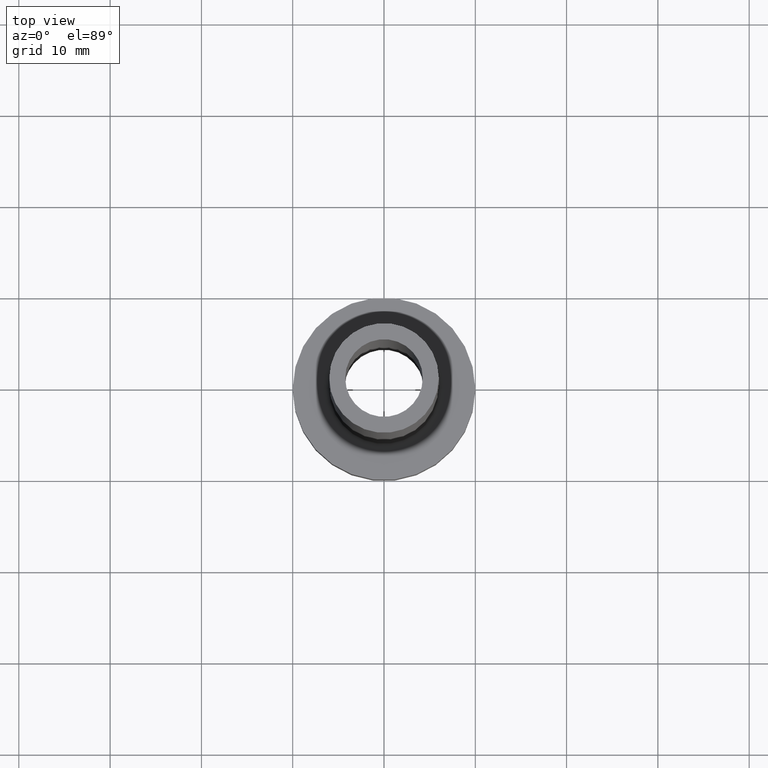
[diagram: clean part render]
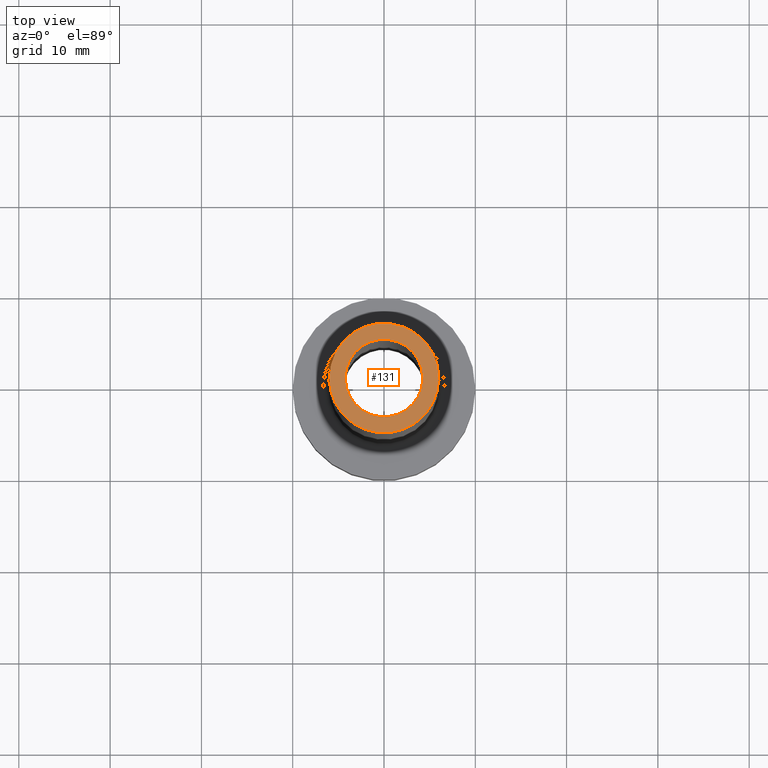
[diagram: same view with one face highlighted and labeled with its STEP entity id]
A machine part, top view. The second image highlights one B-rep face of the part: STEP entity #131.
In plain terms, the highlighted planar face has unit normal (0, 0, 1).
Its self-contained STEP definition (entity closure, byte-faithful):
#15 = FACE_BOUND ( 'NONE', #213, .T. ) ;
#21 = CARTESIAN_POINT ( 'NONE',  ( 0.000000000000000000, 0.000000000000000000, 75.00000000000001421 ) ) ;
#23 = EDGE_LOOP ( 'NONE', ( #432, #285 ) ) ;
#35 = VERTEX_POINT ( 'NONE', #107 ) ;
#52 = DIRECTION ( 'NONE',  ( 0.000000000000000000, 0.000000000000000000, 1.000000000000000000 ) ) ;
#53 = EDGE_CURVE ( 'NONE', #35, #150, #275, .T. ) ;
#55 = CARTESIAN_POINT ( 'NONE',  ( -6.000000000000000888, 0.000000000000000000, 75.00000000000001421 ) ) ;
#59 = CIRCLE ( 'NONE', #194, 4.250000000000000000 ) ;
#78 = DIRECTION ( 'NONE',  ( 0.000000000000000000, 0.000000000000000000, 1.000000000000000000 ) ) ;
#99 = CARTESIAN_POINT ( 'NONE',  ( 0.000000000000000000, 0.000000000000000000, 75.00000000000001421 ) ) ;
#107 = CARTESIAN_POINT ( 'NONE',  ( 6.000000000000000888, 7.347880794884120722E-16, 75.00000000000001421 ) ) ;
#117 = CARTESIAN_POINT ( 'NONE',  ( 4.250000000000000000, 5.204748896376249713E-16, 75.00000000000001421 ) ) ;
#120 = VERTEX_POINT ( 'NONE', #375 ) ;
#121 = FACE_OUTER_BOUND ( 'NONE', #23, .T. ) ;
#130 = DIRECTION ( 'NONE',  ( 0.000000000000000000, 0.000000000000000000, 1.000000000000000000 ) ) ;
#131 = ADVANCED_FACE ( 'NONE', ( #15, #121 ), #192, .T. ) ;
#150 = VERTEX_POINT ( 'NONE', #55 ) ;
#167 = DIRECTION ( 'NONE',  ( 1.000000000000000000, 0.000000000000000000, 0.000000000000000000 ) ) ;
#175 = CARTESIAN_POINT ( 'NONE',  ( 0.000000000000000000, 0.000000000000000000, 75.00000000000001421 ) ) ;
#192 = PLANE ( 'NONE',  #456 ) ;
#194 = AXIS2_PLACEMENT_3D ( 'NONE', #99, #376, #229 ) ;
#201 = AXIS2_PLACEMENT_3D ( 'NONE', #21, #280, #167 ) ;
#209 = DIRECTION ( 'NONE',  ( 1.000000000000000000, 0.000000000000000000, 0.000000000000000000 ) ) ;
#213 = EDGE_LOOP ( 'NONE', ( #393, #292 ) ) ;
#228 = EDGE_CURVE ( 'NONE', #150, #35, #439, .T. ) ;
#229 = DIRECTION ( 'NONE',  ( 1.000000000000000000, 0.000000000000000000, 0.000000000000000000 ) ) ;
#235 = AXIS2_PLACEMENT_3D ( 'NONE', #373, #52, #406 ) ;
#242 = EDGE_CURVE ( 'NONE', #120, #262, #422, .T. ) ;
#262 = VERTEX_POINT ( 'NONE', #117 ) ;
#270 = DIRECTION ( 'NONE',  ( 1.000000000000000000, 0.000000000000000000, -0.000000000000000000 ) ) ;
#275 = CIRCLE ( 'NONE', #383, 6.000000000000000888 ) ;
#280 = DIRECTION ( 'NONE',  ( 0.000000000000000000, 0.000000000000000000, 1.000000000000000000 ) ) ;
#285 = ORIENTED_EDGE ( 'NONE', *, *, #53, .T. ) ;
#292 = ORIENTED_EDGE ( 'NONE', *, *, #394, .F. ) ;
#373 = CARTESIAN_POINT ( 'NONE',  ( 0.000000000000000000, 0.000000000000000000, 75.00000000000001421 ) ) ;
#375 = CARTESIAN_POINT ( 'NONE',  ( -4.250000000000000000, 0.000000000000000000, 75.00000000000001421 ) ) ;
#376 = DIRECTION ( 'NONE',  ( 0.000000000000000000, 0.000000000000000000, 1.000000000000000000 ) ) ;
#383 = AXIS2_PLACEMENT_3D ( 'NONE', #175, #78, #209 ) ;
#393 = ORIENTED_EDGE ( 'NONE', *, *, #242, .F. ) ;
#394 = EDGE_CURVE ( 'NONE', #262, #120, #59, .T. ) ;
#406 = DIRECTION ( 'NONE',  ( 1.000000000000000000, 0.000000000000000000, 0.000000000000000000 ) ) ;
#407 = CARTESIAN_POINT ( 'NONE',  ( 0.000000000000000000, 0.000000000000000000, 75.00000000000001421 ) ) ;
#422 = CIRCLE ( 'NONE', #201, 4.250000000000000000 ) ;
#432 = ORIENTED_EDGE ( 'NONE', *, *, #228, .T. ) ;
#439 = CIRCLE ( 'NONE', #235, 6.000000000000000888 ) ;
#456 = AXIS2_PLACEMENT_3D ( 'NONE', #407, #130, #270 ) ;